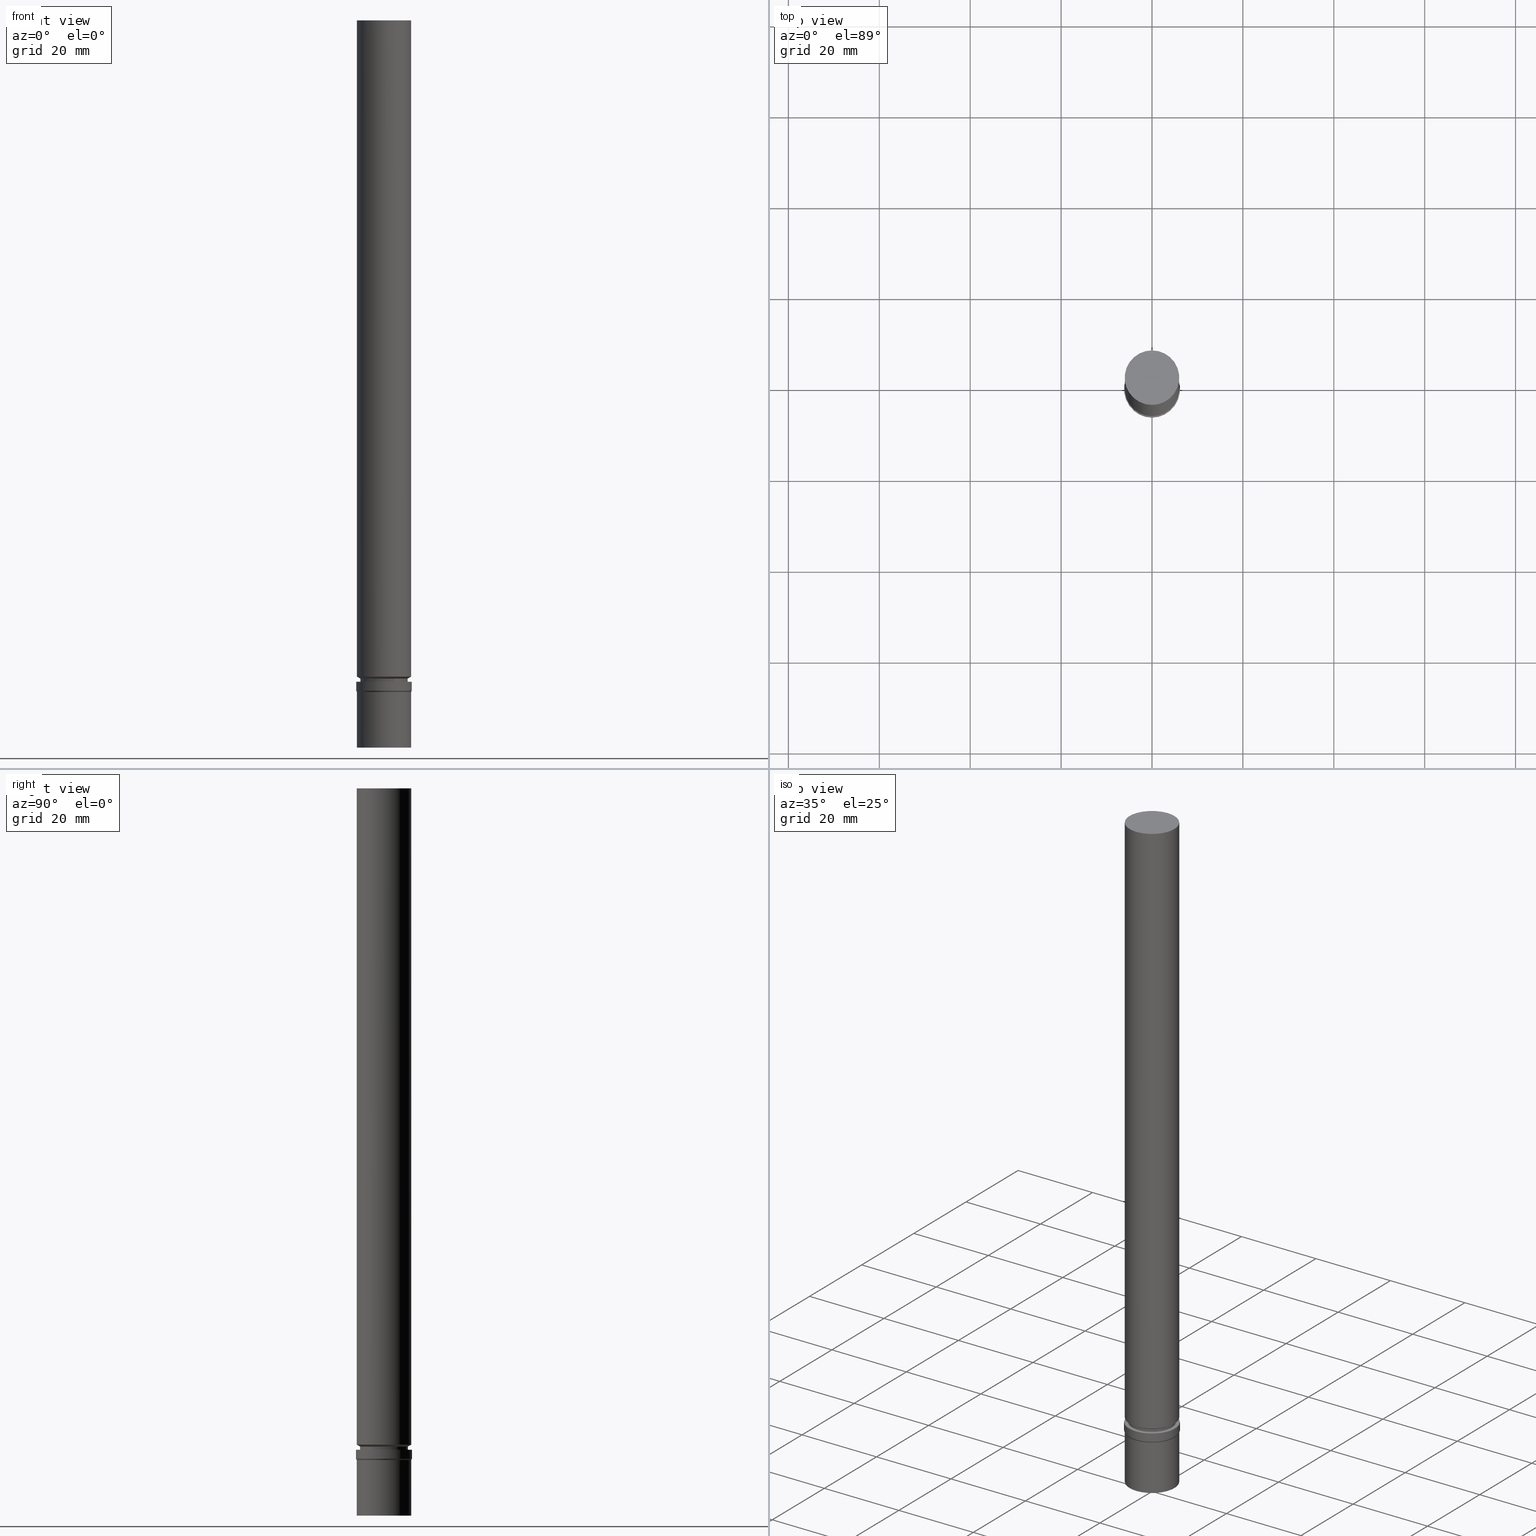
[diagram: canonical four-view strip — front | top / right | iso, engineering-drawing reading convention]
A machine part, canonical four-view strip (front | top / right | iso — engineering-drawing reading convention). The complete STEP part file that produces these views, byte-faithful:
ISO-10303-21;
HEADER;
FILE_DESCRIPTION((''),'1');
FILE_NAME('//Big_tech03/bigt/Translate/21_\X2\8F2A90ED7DDA\X0\-DXF/01_\X2\30E130AC30C130E330C330AF30B730EA30FC30BA\X0\/01_\X2\30E130AC30DE30A430AF30ED30C130E330C330AF\X0\ MEGA-S/ST/ST12-MEGA4S-160.stp','2012-04-24T23:45:43',(''),(''),'Spatial Interop R18','Kubotek KeyCreator V8.5.1 (14335)',' ');
FILE_SCHEMA(('CONFIG_CONTROL_DESIGN'));
ENDSEC;
DATA;
#1=DESIGN_CONTEXT('',#27,'design');
#2=APPLICATION_PROTOCOL_DEFINITION('INTERNATIONAL STANDARD','config_control_design',1994,#27);
#3=PRODUCT_CATEGORY_RELATIONSHIP('NONE','NONE',#28,#29);
#4=DATE_AND_TIME(#30,#31);
#5=DATE_TIME_ROLE('creation_date');
#6=DATE_TIME_ROLE('classification_date');
#7=PERSON_AND_ORGANIZATION_ROLE('creator');
#8=PERSON_AND_ORGANIZATION_ROLE('design_supplier');
#9=PERSON_AND_ORGANIZATION_ROLE('classification_officer');
#10=PERSON_AND_ORGANIZATION_ROLE('design_owner');
#11=APPROVAL_PERSON_ORGANIZATION(#32,#33,#34);
#12=APPROVAL_DATE_TIME(#4,#33);
#13=CC_DESIGN_APPROVAL(#33,(#35,#36,#37));
#14=CC_DESIGN_DATE_AND_TIME_ASSIGNMENT(#4,#5,(#37));
#15=CC_DESIGN_DATE_AND_TIME_ASSIGNMENT(#4,#6,(#35));
#16=CC_DESIGN_PERSON_AND_ORGANIZATION_ASSIGNMENT(#32,#10,(#38));
#17=CC_DESIGN_PERSON_AND_ORGANIZATION_ASSIGNMENT(#32,#7,(#37));
#18=CC_DESIGN_PERSON_AND_ORGANIZATION_ASSIGNMENT(#32,#7,(#36));
#19=CC_DESIGN_PERSON_AND_ORGANIZATION_ASSIGNMENT(#32,#8,(#36));
#20=CC_DESIGN_SECURITY_CLASSIFICATION(#35,(#36));
#21=CC_DESIGN_PERSON_AND_ORGANIZATION_ASSIGNMENT(#32,#9,(#35));
#22=SHAPE_DEFINITION_REPRESENTATION(#39,#40);
#23= (GEOMETRIC_REPRESENTATION_CONTEXT(3)GLOBAL_UNCERTAINTY_ASSIGNED_CONTEXT((#43))GLOBAL_UNIT_ASSIGNED_CONTEXT((#45,#46,#47))REPRESENTATION_CONTEXT('NONE','WORKSPACE'));
#27=APPLICATION_CONTEXT('CONFIGURATION CONTROLLED 3D DESIGNS OF MECHANICAL PARTS AND ASSEMBLIES');
#28=PRODUCT_CATEGORY('part','NONE');
#29=PRODUCT_RELATED_PRODUCT_CATEGORY('detail',' ',(#38));
#30=CALENDAR_DATE(2012,25,3);
#31=LOCAL_TIME(8,45,43.0,#49);
#32=PERSON_AND_ORGANIZATION(#50,#51);
#33=APPROVAL(#52,'SOLID MODEL');
#34=APPROVAL_ROLE('APPROVED');
#35=SECURITY_CLASSIFICATION('','',#53);
#36=PRODUCT_DEFINITION_FORMATION_WITH_SPECIFIED_SOURCE(' ','NONE',#38,.NOT_KNOWN.);
#37=PRODUCT_DEFINITION('NONE','NONE',#36,#1);
#38=PRODUCT('1','1','PART-1-DESC',(#54));
#39=PRODUCT_DEFINITION_SHAPE('NONE','NONE',#37);
#40=ADVANCED_BREP_SHAPE_REPRESENTATION('1',(#55,#56),#23);
#43=UNCERTAINTY_MEASURE_WITH_UNIT(LENGTH_MEASURE(1.0E-006),#45,'','');
#45= (CONVERSION_BASED_UNIT('MILLIMETRE',#59)LENGTH_UNIT()NAMED_UNIT(#62));
#46= (NAMED_UNIT(#64)PLANE_ANGLE_UNIT()SI_UNIT($,.RADIAN.));
#47= (NAMED_UNIT(#64)SOLID_ANGLE_UNIT()SI_UNIT($,.STERADIAN.));
#49=COORDINATED_UNIVERSAL_TIME_OFFSET(9,0,.AHEAD.);
#50=PERSON('','UNSPECIFIED',$,$,$,$);
#51=ORGANIZATION('UNSPECIFIED','UNSPECIFIED','UNSPECIFIED');
#52=APPROVAL_STATUS('approved');
#53=SECURITY_CLASSIFICATION_LEVEL('unclassified');
#54=MECHANICAL_CONTEXT('',#27,'mechanical');
#55=MANIFOLD_SOLID_BREP('1',#70);
#56=AXIS2_PLACEMENT_3D('',#71,#72,#73);
#59=LENGTH_MEASURE_WITH_UNIT(LENGTH_MEASURE(1.0),#74);
#62=DIMENSIONAL_EXPONENTS(1.0,0.0,0.0,0.0,0.0,0.0,0.0);
#64=DIMENSIONAL_EXPONENTS(0.0,0.0,0.0,0.0,0.0,0.0,0.0);
#70=CLOSED_SHELL('',(#75,#76,#77,#78,#79,#80,#81,#82,#83));
#71=CARTESIAN_POINT('',(0.0,0.0,0.0));
#72=DIRECTION('',(0.0,0.0,1.0));
#73=DIRECTION('',(1.0,0.0,0.0));
#74= (NAMED_UNIT(#62)LENGTH_UNIT()SI_UNIT(.MILLI.,.METRE.));
#75=ADVANCED_FACE('',(#85,#86),#87,.T.);
#76=ADVANCED_FACE('',(#88,#89),#90,.T.);
#77=ADVANCED_FACE('',(#91,#92),#93,.T.);
#78=ADVANCED_FACE('',(#94,#95),#96,.T.);
#79=ADVANCED_FACE('',(#97),#98,.T.);
#80=ADVANCED_FACE('',(#99,#100),#101,.T.);
#81=ADVANCED_FACE('',(#102),#103,.T.);
#82=ADVANCED_FACE('',(#104,#105),#106,.T.);
#83=ADVANCED_FACE('',(#107,#108),#109,.T.);
#85=FACE_OUTER_BOUND('',#110,.T.);
#86=FACE_BOUND('',#111,.T.);
#87=PLANE('',#112);
#88=FACE_BOUND('',#113,.T.);
#89=FACE_BOUND('',#114,.T.);
#90=CYLINDRICAL_SURFACE('',#115,6.15000071);
#91=FACE_BOUND('',#116,.T.);
#92=FACE_BOUND('',#117,.T.);
#93=CONICAL_SURFACE('',#118,6.07500038,0.523598782746377);
#94=FACE_BOUND('',#119,.T.);
#95=FACE_BOUND('',#120,.T.);
#96=CYLINDRICAL_SURFACE('',#121,6.00000005);
#97=FACE_OUTER_BOUND('',#122,.T.);
#98=PLANE('',#123);
#99=FACE_BOUND('',#124,.T.);
#100=FACE_BOUND('',#125,.T.);
#101=CYLINDRICAL_SURFACE('',#126,5.2500001);
#102=FACE_OUTER_BOUND('',#127,.T.);
#103=PLANE('',#128);
#104=FACE_BOUND('',#129,.T.);
#105=FACE_BOUND('',#130,.T.);
#106=CYLINDRICAL_SURFACE('',#131,6.0);
#107=FACE_BOUND('',#132,.T.);
#108=FACE_BOUND('',#133,.T.);
#109=CONICAL_SURFACE('',#134,5.62500005,1.04719753148628);
#110=EDGE_LOOP('',(#135));
#111=EDGE_LOOP('',(#136));
#112=AXIS2_PLACEMENT_3D('',#137,#138,#139);
#113=EDGE_LOOP('',(#140));
#114=EDGE_LOOP('',(#141));
#115=AXIS2_PLACEMENT_3D('',#142,#143,#144);
#116=EDGE_LOOP('',(#145));
#117=EDGE_LOOP('',(#146));
#118=AXIS2_PLACEMENT_3D('',#147,#148,#149);
#119=EDGE_LOOP('',(#150));
#120=EDGE_LOOP('',(#151));
#121=AXIS2_PLACEMENT_3D('',#152,#153,#154);
#122=EDGE_LOOP('',(#155));
#123=AXIS2_PLACEMENT_3D('',#156,#157,#158);
#124=EDGE_LOOP('',(#159));
#125=EDGE_LOOP('',(#160));
#126=AXIS2_PLACEMENT_3D('',#161,#162,#163);
#127=EDGE_LOOP('',(#164));
#128=AXIS2_PLACEMENT_3D('',#165,#166,#167);
#129=EDGE_LOOP('',(#168));
#130=EDGE_LOOP('',(#169));
#131=AXIS2_PLACEMENT_3D('',#170,#171,#172);
#132=EDGE_LOOP('',(#173));
#133=EDGE_LOOP('',(#174));
#134=AXIS2_PLACEMENT_3D('',#175,#176,#177);
#135=ORIENTED_EDGE('',*,*,#178,.F.);
#136=ORIENTED_EDGE('',*,*,#179,.T.);
#137=CARTESIAN_POINT('',(-8.87869023067311E-016,5.700000405,14.50000153));
#138=DIRECTION('',(-6.12323399573677E-017,-1.22464679914735E-016,1.0));
#139=DIRECTION('',(1.23259516440783E-032,-1.0,-1.22464679914735E-016));
#140=ORIENTED_EDGE('',*,*,#180,.F.);
#141=ORIENTED_EDGE('',*,*,#178,.T.);
#142=CARTESIAN_POINT('',(-8.26636683109943E-016,-1.65327336621989E-015,13.50000153));
#143=DIRECTION('',(-6.12323399573677E-017,-1.22464679914735E-016,1.0));
#144=DIRECTION('',(-1.23259516440783E-032,1.0,1.22464679914735E-016));
#145=ORIENTED_EDGE('',*,*,#181,.F.);
#146=ORIENTED_EDGE('',*,*,#180,.T.);
#147=CARTESIAN_POINT('',(-7.57449993994464E-016,-1.51489998798893E-015,12.37009715));
#148=DIRECTION('',(-6.12323399573677E-017,-1.22464679914735E-016,1.0));
#149=DIRECTION('',(-1.23259516440783E-032,1.0,1.22464679914735E-016));
#150=ORIENTED_EDGE('',*,*,#182,.F.);
#151=ORIENTED_EDGE('',*,*,#181,.T.);
#152=CARTESIAN_POINT('',(-3.74747822418177E-016,-7.49495644836353E-016,6.12009638499999));
#153=DIRECTION('',(-6.12323399573677E-017,-1.22464679914735E-016,1.0));
#154=DIRECTION('',(-1.23259516440783E-032,1.0,1.22464679914735E-016));
#155=ORIENTED_EDGE('',*,*,#182,.T.);
#156=CARTESIAN_POINT('',(-3.69778552403837E-032,3.000000025,3.67394042805823E-016));
#157=DIRECTION('',(6.12323399573677E-017,1.22464679914735E-016,-1.0));
#158=DIRECTION('',(-1.23259516440783E-032,1.0,1.22464679914735E-016));
#159=ORIENTED_EDGE('',*,*,#179,.F.);
#160=ORIENTED_EDGE('',*,*,#183,.T.);
#161=CARTESIAN_POINT('',(-9.08686546627363E-016,-1.81737309325473E-015,14.83997749));
#162=DIRECTION('',(-6.12323399573677E-017,-1.22464679914735E-016,1.0));
#163=DIRECTION('',(-1.23259516440783E-032,1.0,1.22464679914735E-016));
#164=ORIENTED_EDGE('',*,*,#184,.F.);
#165=CARTESIAN_POINT('',(-9.79717439317883E-015,2.99999999999998,160.0));
#166=DIRECTION('',(-6.12323399573677E-017,-1.22464679914735E-016,1.0));
#167=DIRECTION('',(1.23259516440783E-032,-1.0,-1.22464679914735E-016));
#168=ORIENTED_EDGE('',*,*,#185,.F.);
#169=ORIENTED_EDGE('',*,*,#184,.T.);
#170=CARTESIAN_POINT('',(-5.37659642100301E-015,-1.0753192842006E-014,87.8064830569338));
#171=DIRECTION('',(-6.12323399573677E-017,-1.22464679914735E-016,1.0));
#172=DIRECTION('',(-1.23259516440783E-032,1.0,1.22464679914735E-016));
#173=ORIENTED_EDGE('',*,*,#183,.F.);
#174=ORIENTED_EDGE('',*,*,#185,.T.);
#175=CARTESIAN_POINT('',(-9.42761259507306E-016,-1.88552251901461E-015,15.3964597819338));
#176=DIRECTION('',(-6.12323399573677E-017,-1.22464679914735E-016,1.0));
#177=DIRECTION('',(-1.23259516440783E-032,1.0,1.22464679914735E-016));
#178=EDGE_CURVE('',#186,#186,#187,.T.);
#179=EDGE_CURVE('',#188,#188,#189,.T.);
#180=EDGE_CURVE('',#190,#190,#191,.T.);
#181=EDGE_CURVE('',#192,#192,#193,.T.);
#182=EDGE_CURVE('',#194,#194,#195,.T.);
#183=EDGE_CURVE('',#196,#196,#197,.T.);
#184=EDGE_CURVE('',#198,#198,#199,.T.);
#185=EDGE_CURVE('',#200,#200,#201,.T.);
#186=VERTEX_POINT('',#202);
#187=CIRCLE('',#203,6.15000071);
#188=VERTEX_POINT('',#204);
#189=CIRCLE('',#205,5.2500001);
#190=VERTEX_POINT('',#206);
#191=CIRCLE('',#207,6.15000071);
#192=VERTEX_POINT('',#208);
#193=CIRCLE('',#209,6.00000005);
#194=VERTEX_POINT('',#210);
#195=CIRCLE('',#211,6.00000005);
#196=VERTEX_POINT('',#212);
#197=CIRCLE('',#213,5.2500001);
#198=VERTEX_POINT('',#214);
#199=CIRCLE('',#215,6.0);
#200=VERTEX_POINT('',#216);
#201=CIRCLE('',#217,6.0);
#202=CARTESIAN_POINT('',(-8.87869023067311E-016,6.15000071,14.50000153));
#203=AXIS2_PLACEMENT_3D('',#218,#219,#220);
#204=CARTESIAN_POINT('',(-8.87869023067311E-016,5.2500001,14.50000153));
#205=AXIS2_PLACEMENT_3D('',#221,#222,#223);
#206=CARTESIAN_POINT('',(-7.65404343152575E-016,6.15000071,12.50000153));
#207=AXIS2_PLACEMENT_3D('',#224,#225,#226);
#208=CARTESIAN_POINT('',(-7.49495644836353E-016,6.00000005,12.24019277));
#209=AXIS2_PLACEMENT_3D('',#227,#228,#229);
#210=CARTESIAN_POINT('',(-7.39557104807674E-032,6.00000005,7.34788085611645E-016));
#211=AXIS2_PLACEMENT_3D('',#230,#231,#232);
#212=CARTESIAN_POINT('',(-9.29504070187416E-016,5.2500001,15.17995345));
#213=AXIS2_PLACEMENT_3D('',#233,#234,#235);
#214=CARTESIAN_POINT('',(-9.79717439317883E-015,5.99999999999998,160.0));
#215=AXIS2_PLACEMENT_3D('',#236,#237,#238);
#216=CARTESIAN_POINT('',(-9.56018448827197E-016,6.0,15.6129661138675));
#217=AXIS2_PLACEMENT_3D('',#239,#240,#241);
#218=CARTESIAN_POINT('',(-8.87869023067311E-016,-1.77573804613462E-015,14.50000153));
#219=DIRECTION('',(6.12323399573677E-017,1.22464679914735E-016,-1.0));
#220=DIRECTION('',(-1.23259516440783E-032,1.0,1.22464679914735E-016));
#221=CARTESIAN_POINT('',(-8.87869023067311E-016,-1.77573804613462E-015,14.50000153));
#222=DIRECTION('',(6.12323399573677E-017,1.22464679914735E-016,-1.0));
#223=DIRECTION('',(-1.23259516440783E-032,1.0,1.22464679914735E-016));
#224=CARTESIAN_POINT('',(-7.65404343152575E-016,-1.53080868630515E-015,12.50000153));
#225=DIRECTION('',(6.12323399573677E-017,1.22464679914735E-016,-1.0));
#226=DIRECTION('',(-1.23259516440783E-032,1.0,1.22464679914735E-016));
#227=CARTESIAN_POINT('',(-7.49495644836353E-016,-1.49899128967271E-015,12.24019277));
#228=DIRECTION('',(6.12323399573677E-017,1.22464679914735E-016,-1.0));
#229=DIRECTION('',(-1.23259516440783E-032,1.0,1.22464679914735E-016));
#230=CARTESIAN_POINT('',(0.0,0.0,0.0));
#231=DIRECTION('',(6.12323399573677E-017,1.22464679914735E-016,-1.0));
#232=DIRECTION('',(-1.23259516440783E-032,1.0,1.22464679914735E-016));
#233=CARTESIAN_POINT('',(-9.29504070187416E-016,-1.85900814037483E-015,15.17995345));
#234=DIRECTION('',(6.12323399573677E-017,1.22464679914735E-016,-1.0));
#235=DIRECTION('',(-1.23259516440783E-032,1.0,1.22464679914735E-016));
#236=CARTESIAN_POINT('',(-9.79717439317883E-015,-1.95943487863576E-014,160.0));
#237=DIRECTION('',(6.12323399573677E-017,1.22464679914735E-016,-1.0));
#238=DIRECTION('',(-1.23259516440783E-032,1.0,1.22464679914735E-016));
#239=CARTESIAN_POINT('',(-9.56018448827197E-016,-1.91203689765439E-015,15.6129661138675));
#240=DIRECTION('',(6.12323399573677E-017,1.22464679914735E-016,-1.0));
#241=DIRECTION('',(-1.23259516440783E-032,1.0,1.22464679914735E-016));
ENDSEC;
END-ISO-10303-21;
